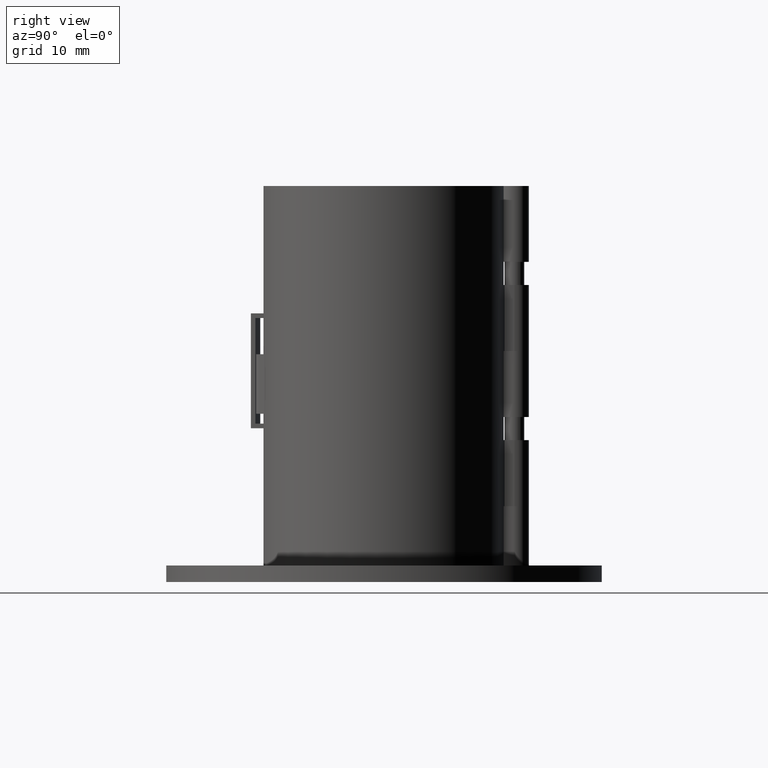
[diagram: clean part render]
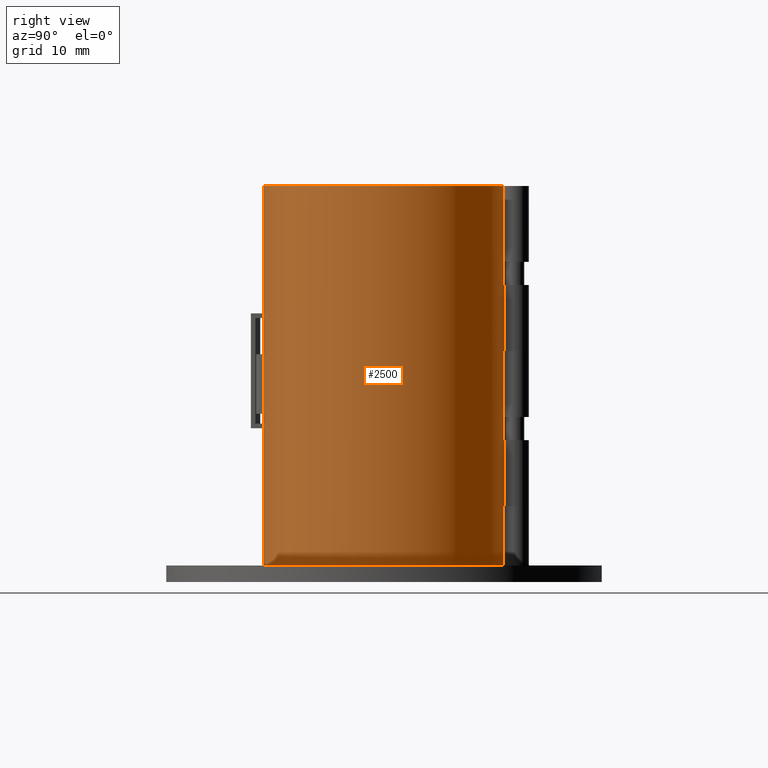
[diagram: same view with one face highlighted and labeled with its STEP entity id]
A machine part, right view. The second image highlights one B-rep face of the part: STEP entity #2500.
In plain terms, the highlighted cylindrical surface (partial cylindrical patch) has radius 18.25 mm, axis along (0, 0, -1).
Its self-contained STEP definition (entity closure, byte-faithful):
#544=CARTESIAN_POINT('',(2.2,18.116911988526073,45.0));
#545=VERTEX_POINT('',#544);
#552=CARTESIAN_POINT('',(-7.632659E-034,18.249999999999996,45.0));
#553=VERTEX_POINT('',#552);
#554=CARTESIAN_POINT('',(-4.440892E-015,-2.220446E-015,45.0));
#555=DIRECTION('',(0.0,0.0,-1.0));
#556=DIRECTION('',(0.0,1.0,0.0));
#557=AXIS2_PLACEMENT_3D('',#554,#555,#556);
#558=CIRCLE('',#557,18.249999999999996);
#559=EDGE_CURVE('',#553,#545,#558,.T.);
#620=CARTESIAN_POINT('',(2.2,18.116911988526073,21.499999999999993));
#621=VERTEX_POINT('',#620);
#628=CARTESIAN_POINT('',(4.325174E-034,18.249999999999996,21.499999999999993));
#629=VERTEX_POINT('',#628);
#630=CARTESIAN_POINT('',(-4.440892E-015,-2.220446E-015,21.499999999999993));
#631=DIRECTION('',(0.0,0.0,-1.0));
#632=DIRECTION('',(0.0,1.0,0.0));
#633=AXIS2_PLACEMENT_3D('',#630,#631,#632);
#634=CIRCLE('',#633,18.249999999999996);
#635=EDGE_CURVE('',#629,#621,#634,.T.);
#693=CARTESIAN_POINT('',(2.2,18.116911988526073,35.0));
#694=VERTEX_POINT('',#693);
#701=CARTESIAN_POINT('',(2.2,18.116911988526073,21.499999999999993));
#702=DIRECTION('',(0.0,0.0,1.0));
#703=VECTOR('',#702,13.500000000000007);
#704=LINE('',#701,#703);
#705=EDGE_CURVE('',#621,#694,#704,.T.);
#726=CARTESIAN_POINT('',(2.2,18.116911988526073,11.499999999999996));
#727=VERTEX_POINT('',#726);
#734=CARTESIAN_POINT('',(2.2,18.116911988526073,0.0));
#735=VERTEX_POINT('',#734);
#736=CARTESIAN_POINT('',(2.2,18.116911988526073,0.0));
#737=DIRECTION('',(0.0,0.0,1.0));
#738=VECTOR('',#737,11.499999999999996);
#739=LINE('',#736,#738);
#740=EDGE_CURVE('',#735,#727,#739,.T.);
#764=CARTESIAN_POINT('',(2.2,18.116911988526073,60.0));
#765=VERTEX_POINT('',#764);
#772=CARTESIAN_POINT('',(2.2,18.116911988526073,45.0));
#773=DIRECTION('',(0.0,0.0,1.0));
#774=VECTOR('',#773,15.0);
#775=LINE('',#772,#774);
#776=EDGE_CURVE('',#545,#765,#775,.T.);
#829=CARTESIAN_POINT('',(-2.544220E-034,18.249999999999996,35.0));
#830=VERTEX_POINT('',#829);
#838=CARTESIAN_POINT('',(-4.440892E-015,-2.220446E-015,35.0));
#839=DIRECTION('',(0.0,0.0,1.0));
#840=DIRECTION('',(0.0,1.0,0.0));
#841=AXIS2_PLACEMENT_3D('',#838,#839,#840);
#842=CIRCLE('',#841,18.249999999999996);
#843=EDGE_CURVE('',#694,#830,#842,.T.);
#896=CARTESIAN_POINT('',(9.413613E-034,18.249999999999996,11.499999999999996));
#897=VERTEX_POINT('',#896);
#905=CARTESIAN_POINT('',(-4.440892E-015,-2.220446E-015,11.5));
#906=DIRECTION('',(0.0,0.0,1.0));
#907=DIRECTION('',(0.0,1.0,0.0));
#908=AXIS2_PLACEMENT_3D('',#905,#906,#907);
#909=CIRCLE('',#908,18.249999999999996);
#910=EDGE_CURVE('',#727,#897,#909,.T.);
#1023=CARTESIAN_POINT('',(9.413613E-034,18.249999999999996,11.499999999999996));
#1024=DIRECTION('',(0.0,0.0,1.0));
#1025=VECTOR('',#1024,9.999999999999996);
#1026=LINE('',#1023,#1025);
#1027=EDGE_CURVE('',#897,#629,#1026,.T.);
#1062=CARTESIAN_POINT('',(0.0,-18.249999999999996,0.0));
#1063=VERTEX_POINT('',#1062);
#1064=CARTESIAN_POINT('',(-4.440892E-015,-2.220446E-015,0.0));
#1065=DIRECTION('',(0.0,0.0,-1.0));
#1066=DIRECTION('',(0.0,1.0,0.0));
#1067=AXIS2_PLACEMENT_3D('',#1064,#1065,#1066);
#1068=CIRCLE('',#1067,18.25);
#1069=EDGE_CURVE('',#735,#1063,#1068,.T.);
#2273=CARTESIAN_POINT('',(1.590592305144805,-18.180553240174365,34.5));
#2274=VERTEX_POINT('',#2273);
#2319=CARTESIAN_POINT('',(1.590592305144805,-18.180553240174365,25.5));
#2320=VERTEX_POINT('',#2319);
#2327=CARTESIAN_POINT('',(1.590592305144804,-18.180553240174351,34.5));
#2328=DIRECTION('',(0.0,0.0,-1.0));
#2329=VECTOR('',#2328,9.0);
#2330=LINE('',#2327,#2329);
#2331=EDGE_CURVE('',#2274,#2320,#2330,.T.);
#2360=CARTESIAN_POINT('',(1.590592305144805,-18.180553240174365,35.75));
#2361=VERTEX_POINT('',#2360);
#2362=CARTESIAN_POINT('',(1.590592305144804,-18.180553240174351,35.75));
#2363=DIRECTION('',(0.0,0.0,-1.0));
#2364=VECTOR('',#2363,1.25);
#2365=LINE('',#2362,#2364);
#2366=EDGE_CURVE('',#2361,#2274,#2365,.T.);
#2383=CARTESIAN_POINT('',(1.590592305144805,-18.180553240174365,24.25));
#2384=VERTEX_POINT('',#2383);
#2385=CARTESIAN_POINT('',(0.0,-18.249999999999996,24.25));
#2386=VERTEX_POINT('',#2385);
#2387=CARTESIAN_POINT('',(-4.440892E-015,-2.220446E-015,24.25));
#2388=DIRECTION('',(0.0,0.0,-1.0));
#2389=DIRECTION('',(0.0,1.0,0.0));
#2390=AXIS2_PLACEMENT_3D('',#2387,#2388,#2389);
#2391=CIRCLE('',#2390,18.249999999999996);
#2392=EDGE_CURVE('',#2384,#2386,#2391,.T.);
#2418=CARTESIAN_POINT('',(1.590592305144804,-18.180553240174351,25.5));
#2419=DIRECTION('',(0.0,0.0,-1.0));
#2420=VECTOR('',#2419,1.25);
#2421=LINE('',#2418,#2420);
#2422=EDGE_CURVE('',#2320,#2384,#2421,.T.);
#2432=CARTESIAN_POINT('',(0.0,-18.249999999999996,35.75));
#2433=VERTEX_POINT('',#2432);
#2434=CARTESIAN_POINT('',(-4.440892E-015,-2.220446E-015,35.75));
#2435=DIRECTION('',(0.0,0.0,1.0));
#2436=DIRECTION('',(0.0,1.0,0.0));
#2437=AXIS2_PLACEMENT_3D('',#2434,#2435,#2436);
#2438=CIRCLE('',#2437,18.249999999999996);
#2439=EDGE_CURVE('',#2433,#2361,#2438,.T.);
#2452=CARTESIAN_POINT('',(-4.440892E-015,-2.220446E-015,30.0));
#2453=DIRECTION('',(0.0,0.0,-1.0));
#2454=DIRECTION('',(0.0,1.0,0.0));
#2455=AXIS2_PLACEMENT_3D('',#2452,#2453,#2454);
#2456=CYLINDRICAL_SURFACE('',#2455,18.249999999999996);
#2457=ORIENTED_EDGE('',*,*,#776,.T.);
#2458=CARTESIAN_POINT('',(0.0,-18.249999999999996,60.0));
#2459=VERTEX_POINT('',#2458);
#2460=CARTESIAN_POINT('',(-4.440892E-015,-2.220446E-015,60.0));
#2461=DIRECTION('',(0.0,0.0,1.0));
#2462=DIRECTION('',(0.0,-1.0,0.0));
#2463=AXIS2_PLACEMENT_3D('',#2460,#2461,#2462);
#2464=CIRCLE('',#2463,18.25);
#2465=EDGE_CURVE('',#2459,#765,#2464,.T.);
#2466=ORIENTED_EDGE('',*,*,#2465,.F.);
#2467=CARTESIAN_POINT('',(0.0,-18.249999999999996,35.75));
#2468=DIRECTION('',(0.0,0.0,1.0));
#2469=VECTOR('',#2468,24.25);
#2470=LINE('',#2467,#2469);
#2471=EDGE_CURVE('',#2433,#2459,#2470,.T.);
#2472=ORIENTED_EDGE('',*,*,#2471,.F.);
#2473=ORIENTED_EDGE('',*,*,#2439,.T.);
#2474=ORIENTED_EDGE('',*,*,#2366,.T.);
#2475=ORIENTED_EDGE('',*,*,#2331,.T.);
#2476=ORIENTED_EDGE('',*,*,#2422,.T.);
#2477=ORIENTED_EDGE('',*,*,#2392,.T.);
#2478=CARTESIAN_POINT('',(0.0,-18.249999999999996,0.0));
#2479=DIRECTION('',(0.0,0.0,1.0));
#2480=VECTOR('',#2479,24.25);
#2481=LINE('',#2478,#2480);
#2482=EDGE_CURVE('',#1063,#2386,#2481,.T.);
#2483=ORIENTED_EDGE('',*,*,#2482,.F.);
#2484=ORIENTED_EDGE('',*,*,#1069,.F.);
#2485=ORIENTED_EDGE('',*,*,#740,.T.);
#2486=ORIENTED_EDGE('',*,*,#910,.T.);
#2487=ORIENTED_EDGE('',*,*,#1027,.T.);
#2488=ORIENTED_EDGE('',*,*,#635,.T.);
#2489=ORIENTED_EDGE('',*,*,#705,.T.);
#2490=ORIENTED_EDGE('',*,*,#843,.T.);
#2491=CARTESIAN_POINT('',(-2.544220E-034,18.249999999999996,35.0));
#2492=DIRECTION('',(0.0,0.0,1.0));
#2493=VECTOR('',#2492,10.0);
#2494=LINE('',#2491,#2493);
#2495=EDGE_CURVE('',#830,#553,#2494,.T.);
#2496=ORIENTED_EDGE('',*,*,#2495,.T.);
#2497=ORIENTED_EDGE('',*,*,#559,.T.);
#2498=EDGE_LOOP('',(#2457,#2466,#2472,#2473,#2474,#2475,#2476,#2477,#2483,#2484,#2485,#2486,#2487,#2488,#2489,#2490,#2496,#2497));
#2499=FACE_OUTER_BOUND('',#2498,.T.);
#2500=ADVANCED_FACE('',(#2499),#2456,.T.);